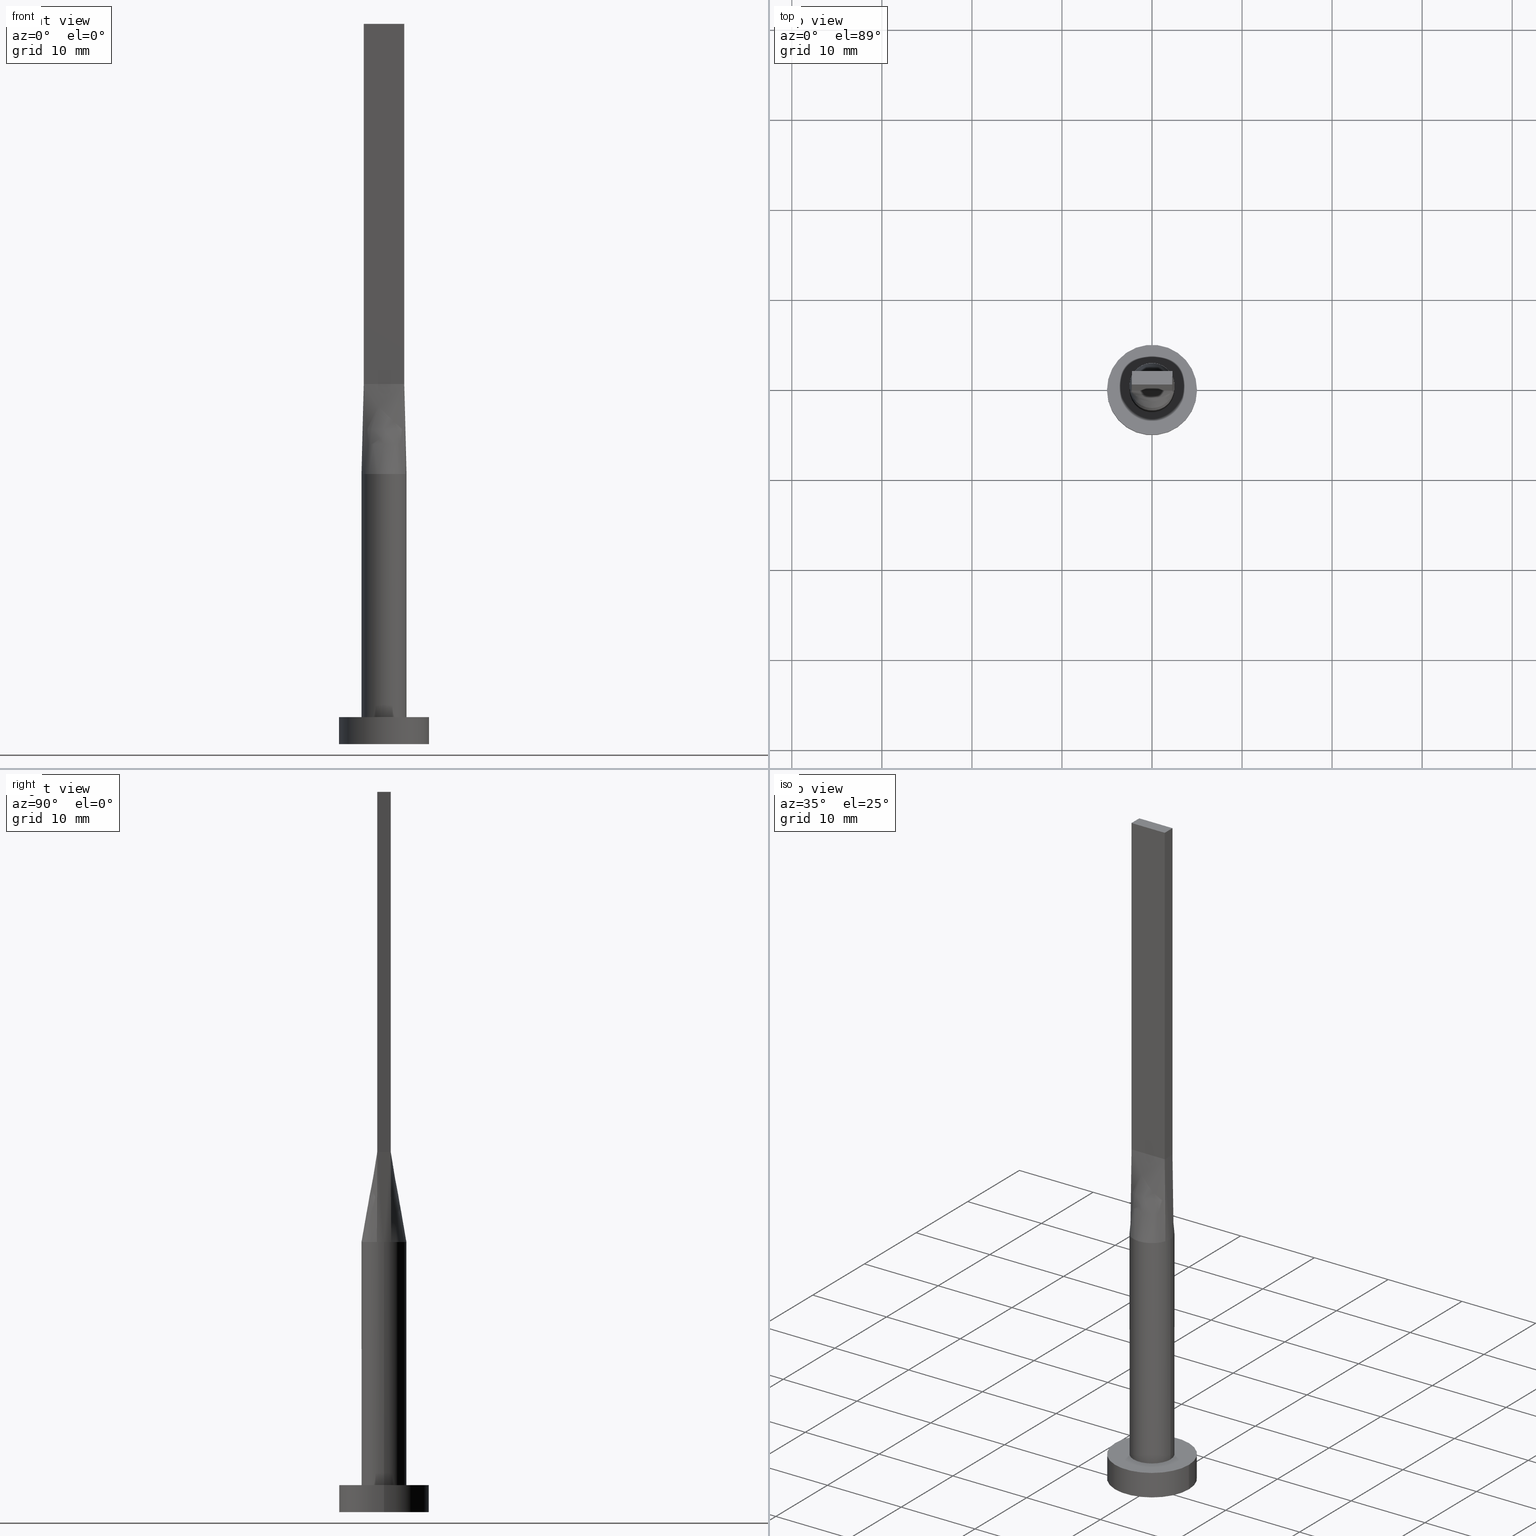
[diagram: canonical four-view strip — front | top / right | iso, engineering-drawing reading convention]
A machine part, canonical four-view strip (front | top / right | iso — engineering-drawing reading convention). The complete STEP part file that produces these views, byte-faithful:
ISO-10303-21;
HEADER;
FILE_DESCRIPTION (( 'STEP AP203' ),
    '1' );
FILE_NAME ('4ed2.STEP',
    '2023-02-13T11:21:04',
    ( '' ),
    ( '' ),
    'SwSTEP 2.0',
    'SolidWorks 2019',
    '' );
FILE_SCHEMA (( 'CONFIG_CONTROL_DESIGN' ));
ENDSEC;

DATA;
#1 = ORIENTED_EDGE ( 'NONE', *, *, #141, .F. ) ;
#2 = LINE ( 'NONE', #173, #305 ) ;
#3 = CARTESIAN_POINT ( 'NONE',  ( 2.371798206859841329, -0.7905998626979697796, 30.00000000000000000 ) ) ;
#4 = ORIENTED_EDGE ( 'NONE', *, *, #423, .T. ) ;
#5 = CARTESIAN_POINT ( 'NONE',  ( 0.000000000000000000, 0.000000000000000000, 3.000000000000000000 ) ) ;
#6 = DIRECTION ( 'NONE',  ( 1.000000000000000000, 0.000000000000000000, -0.000000000000000000 ) ) ;
#7 = CARTESIAN_POINT ( 'NONE',  ( -5.000000000000000000, 0.000000000000000000, 0.000000000000000000 ) ) ;
#8 = CARTESIAN_POINT ( 'NONE',  ( 5.000000000000000000, 6.123233995736766282E-16, 3.000000000000000000 ) ) ;
#9 = CARTESIAN_POINT ( 'NONE',  ( -2.249999999999999556, 0.7500000000000002220, 80.00000000000000000 ) ) ;
#10 = PLANE ( 'NONE',  #266 ) ;
#11 = COORDINATED_UNIVERSAL_TIME_OFFSET ( 1, 0, .AHEAD. ) ;
#12 = CARTESIAN_POINT ( 'NONE',  ( -2.309208245126284975, 0.9780694150420951027, 30.00000000000000355 ) ) ;
#13 = APPLICATION_PROTOCOL_DEFINITION ( 'international standard', 'config_control_design', 1994, #44 ) ;
#14 = CARTESIAN_POINT ( 'NONE',  ( -2.218933079238281536, 1.174882007251999871, 29.99999999999999645 ) ) ;
#15 = CC_DESIGN_PERSON_AND_ORGANIZATION_ASSIGNMENT ( #527, #195, ( #200 ) ) ;
#16 = CARTESIAN_POINT ( 'NONE',  ( 0.6000386972366476002, -2.444291348568452538, 30.00000000000000355 ) ) ;
#17 = B_SPLINE_SURFACE_WITH_KNOTS ( 'NONE', 3, 1, ( 
 ( #374, #522 ),
 ( #552, #197 ),
 ( #18, #478 ),
 ( #340, #72 ),
 ( #194, #380 ),
 ( #382, #116 ),
 ( #424, #560 ),
 ( #236, #149 ),
 ( #386, #513 ),
 ( #228, #152 ),
 ( #331, #290 ),
 ( #433, #274 ),
 ( #60, #471 ),
 ( #231, #225 ),
 ( #285, #334 ),
 ( #14, #518 ),
 ( #114, #481 ),
 ( #189, #324 ) ),
 .UNSPECIFIED., .F., .F., .F.,
 ( 4, 2, 2, 2, 2, 2, 2, 2, 4 ),
 ( 2, 2 ),
 ( 0.000000000000000000, 0.1250000000000000000, 0.2500000000000000000, 0.3750000000000000000, 0.5000000000000000000, 0.6250000000000000000, 0.7500000000000000000, 0.8750000000000000000, 1.000000000000000000 ),
 ( 0.000000000000000000, 1.000000000000000000 ),
 .UNSPECIFIED. ) ;
#18 = CARTESIAN_POINT ( 'NONE',  ( 2.218933079238281980, 1.174882007252000315, 29.99999999999999289 ) ) ;
#19 = CARTESIAN_POINT ( 'NONE',  ( 1.145194483530141083, -2.241235424885161365, 30.00000000000000000 ) ) ;
#20 = ORIENTED_EDGE ( 'NONE', *, *, #420, .F. ) ;
#21 = FACE_OUTER_BOUND ( 'NONE', #531, .T. ) ;
#22 = EDGE_CURVE ( 'NONE', #393, #564, #41, .T. ) ;
#23 = CARTESIAN_POINT ( 'NONE',  ( 2.371708245126284531, 0.7905694150420949917, 30.00000000000000000 ) ) ;
#24 = ORIENTED_EDGE ( 'NONE', *, *, #22, .T. ) ;
#25 = ORIENTED_EDGE ( 'NONE', *, *, #356, .F. ) ;
#26 = AXIS2_PLACEMENT_3D ( 'NONE', #175, #49, #135 ) ;
#27 = CARTESIAN_POINT ( 'NONE',  ( 0.000000000000000000, 0.000000000000000000, 30.00000000000000000 ) ) ;
#28 = EDGE_LOOP ( 'NONE', ( #456, #459 ) ) ;
#29 = CARTESIAN_POINT ( 'NONE',  ( -2.250000000000000000, -0.7499999999999995559, 80.00000000000000000 ) ) ;
#30 = EDGE_CURVE ( 'NONE', #567, #235, #47, .T. ) ;
#31 = DIRECTION ( 'NONE',  ( -0.000000000000000000, -0.000000000000000000, -1.000000000000000000 ) ) ;
#32 = CIRCLE ( 'NONE', #76, 5.000000000000000000 ) ;
#33 = VERTEX_POINT ( 'NONE', #131 ) ;
#34 = CARTESIAN_POINT ( 'NONE',  ( -2.500000000000000000, 0.000000000000000000, 3.000000000000000000 ) ) ;
#35 = CARTESIAN_POINT ( 'NONE',  ( 0.6000386972366480443, 2.444291348568451649, 29.99999999999999645 ) ) ;
#36 = VECTOR ( 'NONE', #346, 1000.000000000000000 ) ;
#37 = CARTESIAN_POINT ( 'NONE',  ( -2.250000000000000000, -0.7499999999999995559, 80.00000000000000000 ) ) ;
#38 = VECTOR ( 'NONE', #292, 1000.000000000000000 ) ;
#39 = CARTESIAN_POINT ( 'NONE',  ( -1.799471046981195199, 1.755719709239274229, 30.00000000000001066 ) ) ;
#40 = CARTESIAN_POINT ( 'NONE',  ( 1.390086206340438890, -2.094828891646495883, 30.00000000000000355 ) ) ;
#41 = LINE ( 'NONE', #540, #36 ) ;
#42 = ADVANCED_FACE ( 'NONE', ( #359 ), #492, .T. ) ;
#43 = ORIENTED_EDGE ( 'NONE', *, *, #158, .F. ) ;
#44 = APPLICATION_CONTEXT ( 'configuration controlled 3d designs of mechanical parts and assemblies' ) ;
#45 = LINE ( 'NONE', #352, #542 ) ;
#46 = ORIENTED_EDGE ( 'NONE', *, *, #260, .F. ) ;
#47 = LINE ( 'NONE', #410, #104 ) ;
#48 = EDGE_LOOP ( 'NONE', ( #196, #247, #120, #404, #20, #264 ) ) ;
#49 = DIRECTION ( 'NONE',  ( 0.000000000000000000, 0.000000000000000000, 1.000000000000000000 ) ) ;
#50 = UNCERTAINTY_MEASURE_WITH_UNIT (LENGTH_MEASURE( 1.000000000000000082E-05 ), #360, 'distance_accuracy_value', 'NONE');
#51 = EDGE_CURVE ( 'NONE', #97, #438, #396, .T. ) ;
#52 = DIRECTION ( 'NONE',  ( 0.000000000000000000, 0.000000000000000000, 1.000000000000000000 ) ) ;
#53 = B_SPLINE_SURFACE_WITH_KNOTS ( 'NONE', 3, 1, ( 
 ( #109, #428 ),
 ( #112, #155 ),
 ( #239, #192 ),
 ( #557, #67 ),
 ( #515, #283 ),
 ( #23, #186 ) ),
 .UNSPECIFIED., .F., .F., .F.,
 ( 4, 2, 4 ),
 ( 2, 2 ),
 ( 0.000000000000000000, 0.5000000000000000000, 1.000000000000000000 ),
 ( 0.000000000000000000, 1.000000000000000000 ),
 .UNSPECIFIED. ) ;
#54 = ORIENTED_EDGE ( 'NONE', *, *, #502, .F. ) ;
#55 = DIRECTION ( 'NONE',  ( 0.01216982305197525371, -0.004056607683991667393, 0.9999177162851859979 ) ) ;
#56 = SECURITY_CLASSIFICATION ( '', '', #336 ) ;
#57 = CARTESIAN_POINT ( 'NONE',  ( 2.249999999999999556, 0.7500000000000002220, 80.00000000000000000 ) ) ;
#58 = VECTOR ( 'NONE', #251, 1000.000000000000000 ) ;
#59 = CC_DESIGN_APPROVAL ( #119, ( #200 ) ) ;
#60 = CARTESIAN_POINT ( 'NONE',  ( -1.390086206340438890, 2.094828891646495883, 30.00000000000000355 ) ) ;
#61 = CALENDAR_DATE ( 2023, 13, 2 ) ;
#62 = CARTESIAN_POINT ( 'NONE',  ( -2.371775648085652222, -0.7905922034696525325, 30.00000000000000000 ) ) ;
#63 = EDGE_CURVE ( 'NONE', #205, #204, #534, .T. ) ;
#64 = CIRCLE ( 'NONE', #203, 2.500000000000000000 ) ;
#65 = CARTESIAN_POINT ( 'NONE',  ( -5.000000000000000000, 0.000000000000000000, 3.000000000000000000 ) ) ;
#66 = EDGE_LOOP ( 'NONE', ( #354, #411 ) ) ;
#67 = CARTESIAN_POINT ( 'NONE',  ( 2.249999999999999556, 0.2499999999999999445, 39.99999999999999289 ) ) ;
#68 = CARTESIAN_POINT ( 'NONE',  ( -2.218933079238281980, -1.174882007251999427, 29.99999999999999645 ) ) ;
#69 = EDGE_LOOP ( 'NONE', ( #277, #73, #77, #408, #575 ) ) ;
#70 = AXIS2_PLACEMENT_3D ( 'NONE', #272, #105, #457 ) ;
#71 = AXIS2_PLACEMENT_3D ( 'NONE', #27, #127, #258 ) ;
#72 = CARTESIAN_POINT ( 'NONE',  ( 1.499999999999991784, 0.7500000000000002220, 39.99999999999999289 ) ) ;
#73 = ORIENTED_EDGE ( 'NONE', *, *, #158, .T. ) ;
#74 = ORIENTED_EDGE ( 'NONE', *, *, #423, .F. ) ;
#75 = CARTESIAN_POINT ( 'NONE',  ( -5.000000000000000000, 0.000000000000000000, 3.000000000000000000 ) ) ;
#76 = AXIS2_PLACEMENT_3D ( 'NONE', #480, #559, #388 ) ;
#77 = ORIENTED_EDGE ( 'NONE', *, *, #30, .F. ) ;
#78 = CARTESIAN_POINT ( 'NONE',  ( -0.3003163416900532234, -2.499999999999999556, 30.00000000000000000 ) ) ;
#79 = ORIENTED_EDGE ( 'NONE', *, *, #555, .T. ) ;
#80 = CARTESIAN_POINT ( 'NONE',  ( -2.455041578459618012, -0.5405694150420945476, 30.00000000000000355 ) ) ;
#81 = CARTESIAN_POINT ( 'NONE',  ( 2.309208245126284975, 0.9780694150420948807, 29.99999999999999645 ) ) ;
#82 = EDGE_CURVE ( 'NONE', #165, #393, #84, .T. ) ;
#83 = CYLINDRICAL_SURFACE ( 'NONE', #537, 5.000000000000000000 ) ;
#84 = LINE ( 'NONE', #295, #58 ) ;
#85 = ORIENTED_EDGE ( 'NONE', *, *, #263, .T. ) ;
#86 = CARTESIAN_POINT ( 'NONE',  ( 2.250000000000000000, -0.7499999999999997780, 80.00000000000000000 ) ) ;
#87 = DIRECTION ( 'NONE',  ( -0.000000000000000000, -0.000000000000000000, -1.000000000000000000 ) ) ;
#88 = EDGE_CURVE ( 'NONE', #579, #183, #468, .T. ) ;
#89 = LINE ( 'NONE', #100, #154 ) ;
#90 = LOCAL_TIME ( 12, 21, 4.000000000000000000, #434 ) ;
#91 = EDGE_CURVE ( 'NONE', #230, #341, #113, .T. ) ;
#92 = CARTESIAN_POINT ( 'NONE',  ( 0.000000000000000000, 0.000000000000000000, 30.00000000000000000 ) ) ;
#93 = DIRECTION ( 'NONE',  ( 0.000000000000000000, 0.000000000000000000, 1.000000000000000000 ) ) ;
#94 = EDGE_LOOP ( 'NONE', ( #498, #581, #315, #4 ) ) ;
#95 = FACE_OUTER_BOUND ( 'NONE', #66, .T. ) ;
#96 = CARTESIAN_POINT ( 'NONE',  ( -2.250000000000000000, -0.7499999999999995559, 40.00000000000000000 ) ) ;
#97 = VERTEX_POINT ( 'NONE', #265 ) ;
#98 = CIRCLE ( 'NONE', #467, 2.500000000000000000 ) ;
#99 = DIRECTION ( 'NONE',  ( -1.000000000000000000, 0.000000000000000000, 0.000000000000000000 ) ) ;
#100 = CARTESIAN_POINT ( 'NONE',  ( -2.249999999999999556, 0.7500000000000002220, 40.00000000000000000 ) ) ;
#101 = FACE_BOUND ( 'NONE', #28, .T. ) ;
#102 = EDGE_LOOP ( 'NONE', ( #348, #54, #373, #148 ) ) ;
#103 = FACE_OUTER_BOUND ( 'NONE', #94, .T. ) ;
#104 = VECTOR ( 'NONE', #298, 1000.000000000000114 ) ;
#105 = DIRECTION ( 'NONE',  ( 1.000000000000000000, -2.891205793294678819E-16, 0.000000000000000000 ) ) ;
#106 = CC_DESIGN_PERSON_AND_ORGANIZATION_ASSIGNMENT ( #554, #232, ( #178 ) ) ;
#107 = CALENDAR_DATE ( 2023, 13, 2 ) ;
#108 = CARTESIAN_POINT ( 'NONE',  ( -1.145194483530141305, -2.241235424885160477, 30.00000000000000355 ) ) ;
#109 = CARTESIAN_POINT ( 'NONE',  ( 2.371708245126284531, -0.7905694150420953248, 30.00000000000000000 ) ) ;
#110 = AXIS2_PLACEMENT_3D ( 'NONE', #294, #245, #398 ) ;
#111 = ORIENTED_EDGE ( 'NONE', *, *, #545, .F. ) ;
#112 = CARTESIAN_POINT ( 'NONE',  ( 2.455041578459617568, -0.5405694150420953248, 30.00000000000000355 ) ) ;
#113 = CIRCLE ( 'NONE', #448, 5.000000000000000000 ) ;
#114 = CARTESIAN_POINT ( 'NONE',  ( -2.309208245126284975, 0.9780694150420951027, 30.00000000000000355 ) ) ;
#115 = EDGE_LOOP ( 'NONE', ( #111, #484, #160, #43, #556, #85 ) ) ;
#116 = CARTESIAN_POINT ( 'NONE',  ( 0.9374999999999881206, 0.7500000000000003331, 39.99999999999999289 ) ) ;
#117 = ORIENTED_EDGE ( 'NONE', *, *, #278, .F. ) ;
#118 = CARTESIAN_POINT ( 'NONE',  ( 2.250000000000000000, -0.7499999999999997780, 40.00000000000000000 ) ) ;
#119 = APPROVAL ( #182, 'NEUR�EN�' ) ;
#120 = ORIENTED_EDGE ( 'NONE', *, *, #220, .T. ) ;
#121 = FACE_OUTER_BOUND ( 'NONE', #271, .T. ) ;
#122 = CARTESIAN_POINT ( 'NONE',  ( 0.000000000000000000, 0.000000000000000000, 3.000000000000000000 ) ) ;
#123 = CARTESIAN_POINT ( 'NONE',  ( 1.799471046981194977, 1.755719709239274007, 30.00000000000000355 ) ) ;
#124 = DIRECTION ( 'NONE',  ( 1.000000000000000000, -4.818676322157797621E-17, 0.000000000000000000 ) ) ;
#125 = CARTESIAN_POINT ( 'NONE',  ( -2.455041578459617568, 0.5405694150420949917, 30.00000000000000355 ) ) ;
#126 = CARTESIAN_POINT ( 'NONE',  ( -0.3003163416900526128, 2.499999999999999112, 29.99999999999999645 ) ) ;
#127 = DIRECTION ( 'NONE',  ( 0.000000000000000000, 0.000000000000000000, 1.000000000000000000 ) ) ;
#128 = CARTESIAN_POINT ( 'NONE',  ( -2.250000000000000000, -0.7499999999999995559, 40.00000000000000000 ) ) ;
#129 = DIRECTION ( 'NONE',  ( -1.000000000000000000, 0.000000000000000000, 0.000000000000000000 ) ) ;
#130 = ORIENTED_EDGE ( 'NONE', *, *, #278, .T. ) ;
#131 = CARTESIAN_POINT ( 'NONE',  ( 2.500000000000000000, 3.061616997868383141E-16, 3.000000000000000000 ) ) ;
#132 = DIRECTION ( 'NONE',  ( -0.000000000000000000, -0.000000000000000000, -1.000000000000000000 ) ) ;
#133 = DIRECTION ( 'NONE',  ( 0.000000000000000000, 0.000000000000000000, 1.000000000000000000 ) ) ;
#134 = AXIS2_PLACEMENT_3D ( 'NONE', #461, #52, #217 ) ;
#135 = DIRECTION ( 'NONE',  ( 1.000000000000000000, 0.000000000000000000, 0.000000000000000000 ) ) ;
#136 = CARTESIAN_POINT ( 'NONE',  ( 0.000000000000000000, 0.000000000000000000, 0.000000000000000000 ) ) ;
#137 = DIRECTION ( 'NONE',  ( -0.01216982305197525371, -0.004056607683991722904, 0.9999177162851859979 ) ) ;
#138 = LINE ( 'NONE', #65, #227 ) ;
#139 = COORDINATED_UNIVERSAL_TIME_OFFSET ( 1, 0, .AHEAD. ) ;
#140 = EDGE_LOOP ( 'NONE', ( #46, #319, #533, #370 ) ) ;
#141 = EDGE_CURVE ( 'NONE', #487, #455, #418, .T. ) ;
#142 = DIRECTION ( 'NONE',  ( 0.000000000000000000, 0.000000000000000000, 1.000000000000000000 ) ) ;
#143 = VERTEX_POINT ( 'NONE', #313 ) ;
#144 = CARTESIAN_POINT ( 'NONE',  ( 2.249999999999999556, 0.7500000000000002220, 80.00000000000000000 ) ) ;
#145 = DATE_TIME_ROLE ( 'classification_date' ) ;
#146 = LINE ( 'NONE', #281, #406 ) ;
#147 = PERSON_AND_ORGANIZATION ( #163, #181 ) ;
#148 = ORIENTED_EDGE ( 'NONE', *, *, #63, .T. ) ;
#149 = CARTESIAN_POINT ( 'NONE',  ( 0.3749999999999862332, 0.7500000000000003331, 39.99999999999999289 ) ) ;
#150 = CARTESIAN_POINT ( 'NONE',  ( 2.499999999999999556, 3.110810548879990207E-17, 30.00000000000000000 ) ) ;
#151 = EDGE_LOOP ( 'NONE', ( #1, #453 ) ) ;
#152 = CARTESIAN_POINT ( 'NONE',  ( -0.1875000000000138778, 0.7500000000000003331, 39.99999999999999289 ) ) ;
#153 = PLANE ( 'NONE',  #314 ) ;
#154 = VECTOR ( 'NONE', #409, 1000.000000000000000 ) ;
#155 = CARTESIAN_POINT ( 'NONE',  ( 2.250000000000000000, -0.4999999999999998890, 39.99999999999999289 ) ) ;
#156 = MANIFOLD_SOLID_BREP ( 'P�idat vysunut�m5', #376 ) ;
#157 = DIRECTION ( 'NONE',  ( 1.000000000000000000, 0.000000000000000000, -0.000000000000000000 ) ) ;
#158 = EDGE_CURVE ( 'NONE', #97, #235, #98, .T. ) ;
#159 = LINE ( 'NONE', #525, #38 ) ;
#160 = ORIENTED_EDGE ( 'NONE', *, *, #555, .F. ) ;
#161 = VECTOR ( 'NONE', #226, 1000.000000000000000 ) ;
#162 = ADVANCED_FACE ( 'NONE', ( #101, #95 ), #269, .T. ) ;
#163 = PERSON ( 'NEUR�EN�', 'NEUR�EN�', 'NEUR�EN�', ('NEUR�EN�'), ('NEUR�EN�'), ('NEUR�EN�') ) ;
#164 = CARTESIAN_POINT ( 'NONE',  ( 1.799471046981195199, -1.755719709239274229, 30.00000000000000711 ) ) ;
#165 = VERTEX_POINT ( 'NONE', #9 ) ;
#166 = CARTESIAN_POINT ( 'NONE',  ( 2.250000000000000000, -0.7499999999999997780, 80.00000000000000000 ) ) ;
#167 = CARTESIAN_POINT ( 'NONE',  ( -1.390086206340438890, 2.094828891646495883, 30.00000000000000355 ) ) ;
#168 = LINE ( 'NONE', #501, #234 ) ;
#169 = DIRECTION ( 'NONE',  ( 0.000000000000000000, 0.000000000000000000, 1.000000000000000000 ) ) ;
#170 = CARTESIAN_POINT ( 'NONE',  ( 0.000000000000000000, 0.000000000000000000, 3.000000000000000000 ) ) ;
#171 = CARTESIAN_POINT ( 'NONE',  ( -2.500000000000000888, 0.2704627669472991491, 30.00000000000000000 ) ) ;
#172 = ORIENTED_EDGE ( 'NONE', *, *, #63, .F. ) ;
#173 = CARTESIAN_POINT ( 'NONE',  ( -2.249999999999999556, 0.7500000000000002220, 80.00000000000000000 ) ) ;
#174 = DIRECTION ( 'NONE',  ( -0.01216982305197521208, 0.004056607683991797497, 0.9999177162851859979 ) ) ;
#175 = CARTESIAN_POINT ( 'NONE',  ( 0.000000000000000000, 0.000000000000000000, 3.000000000000000000 ) ) ;
#176 = CC_DESIGN_DATE_AND_TIME_ASSIGNMENT ( #378, #286, ( #200 ) ) ;
#177 = DIRECTION ( 'NONE',  ( 4.818676322157797621E-17, 1.000000000000000000, -0.000000000000000000 ) ) ;
#178 = PRODUCT_DEFINITION_FORMATION_WITH_SPECIFIED_SOURCE ( 'LIBOVOLN�', '', #549, .NOT_KNOWN. ) ;
#179 = ADVANCED_FACE ( 'NONE', ( #470 ), #267, .F. ) ;
#180 = DIRECTION ( 'NONE',  ( 1.000000000000000000, 0.000000000000000000, 0.000000000000000000 ) ) ;
#181 = ORGANIZATION ( 'NEUR�EN�', 'NEUR�EN�', '' ) ;
#182 = APPROVAL_STATUS ( 'not_yet_approved' ) ;
#183 = VERTEX_POINT ( 'NONE', #184 ) ;
#184 = CARTESIAN_POINT ( 'NONE',  ( -2.371795432964766359, 0.7905989074952441964, 30.00000000000000000 ) ) ;
#185 = PRODUCT_DEFINITION_SHAPE ( 'NONE', 'NONE',  #200 ) ;
#186 = CARTESIAN_POINT ( 'NONE',  ( 2.249999999999999556, 0.7500000000000002220, 40.00000000000000000 ) ) ;
#187 = APPROVAL_ROLE ( '' ) ;
#188 = DIRECTION ( 'NONE',  ( 1.000000000000000000, 0.000000000000000000, 0.000000000000000000 ) ) ;
#189 = CARTESIAN_POINT ( 'NONE',  ( -2.371708245126284531, 0.7905694150420944366, 30.00000000000000000 ) ) ;
#190 = CARTESIAN_POINT ( 'NONE',  ( 2.250000000000000000, -0.7499999999999997780, 40.00000000000000000 ) ) ;
#191 = B_SPLINE_SURFACE_WITH_KNOTS ( 'NONE', 3, 1, ( 
 ( #379, #435 ),
 ( #486, #242 ),
 ( #68, #384 ),
 ( #476, #562 ),
 ( #287, #520 ),
 ( #483, #240 ),
 ( #108, #198 ),
 ( #201, #276 ),
 ( #78, #326 ),
 ( #472, #426 ),
 ( #16, #233 ),
 ( #19, #454 ),
 ( #40, #248 ),
 ( #164, #577 ),
 ( #536, #489 ),
 ( #355, #451 ),
 ( #571, #496 ),
 ( #209, #118 ) ),
 .UNSPECIFIED., .F., .F., .F.,
 ( 4, 2, 2, 2, 2, 2, 2, 2, 4 ),
 ( 2, 2 ),
 ( 0.000000000000000000, 0.1250000000000000555, 0.2500000000000001110, 0.3750000000000001110, 0.5000000000000001110, 0.6250000000000000000, 0.7500000000000000000, 0.8749999999999998890, 1.000000000000000000 ),
 ( 0.000000000000000000, 1.000000000000000000 ),
 .UNSPECIFIED. ) ;
#192 = CARTESIAN_POINT ( 'NONE',  ( 2.249999999999999556, -0.2500000000000000000, 39.99999999999999289 ) ) ;
#193 = PERSON_AND_ORGANIZATION ( #163, #181 ) ;
#194 = CARTESIAN_POINT ( 'NONE',  ( 1.799471046981194977, 1.755719709239274007, 30.00000000000000355 ) ) ;
#195 = PERSON_AND_ORGANIZATION_ROLE ( 'creator' ) ;
#196 = ORIENTED_EDGE ( 'NONE', *, *, #375, .F. ) ;
#197 = CARTESIAN_POINT ( 'NONE',  ( 2.062499999999996891, 0.7500000000000002220, 39.99999999999999289 ) ) ;
#198 = CARTESIAN_POINT ( 'NONE',  ( -0.7499999999999997780, -0.7499999999999995559, 40.00000000000000000 ) ) ;
#199 = AXIS2_PLACEMENT_3D ( 'NONE', #310, #93, #214 ) ;
#200 = PRODUCT_DEFINITION ( 'NEZN�M�', '', #178, #275 ) ;
#201 = CARTESIAN_POINT ( 'NONE',  ( -0.6000386972366480443, -2.444291348568451649, 29.99999999999998934 ) ) ;
#202 = DIRECTION ( 'NONE',  ( -0.000000000000000000, -0.000000000000000000, -1.000000000000000000 ) ) ;
#203 = AXIS2_PLACEMENT_3D ( 'NONE', #92, #402, #407 ) ;
#204 = VERTEX_POINT ( 'NONE', #421 ) ;
#205 = VERTEX_POINT ( 'NONE', #216 ) ;
#206 = CARTESIAN_POINT ( 'NONE',  ( -2.371708245126284531, 0.7905694150420949917, 30.00000000000000000 ) ) ;
#207 = CARTESIAN_POINT ( 'NONE',  ( -0.6000386972366482663, 2.444291348568452094, 30.00000000000000000 ) ) ;
#208 = CC_DESIGN_DATE_AND_TIME_ASSIGNMENT ( #383, #145, ( #56 ) ) ;
#209 = CARTESIAN_POINT ( 'NONE',  ( 2.371708245126284531, -0.7905694150420953248, 30.00000000000000000 ) ) ;
#210 = ORIENTED_EDGE ( 'NONE', *, *, #356, .T. ) ;
#211 = DIRECTION ( 'NONE',  ( -1.000000000000000000, -0.000000000000000000, -0.000000000000000000 ) ) ;
#212 = EDGE_LOOP ( 'NONE', ( #441, #74, #431, #576 ) ) ;
#213 = CIRCLE ( 'NONE', #110, 2.500000000000000000 ) ;
#214 = DIRECTION ( 'NONE',  ( 1.000000000000000000, -4.440892098500626162E-15, 0.000000000000000000 ) ) ;
#215 = ADVANCED_FACE ( 'NONE', ( #103 ), #362, .F. ) ;
#216 = CARTESIAN_POINT ( 'NONE',  ( 2.249999999999999556, 0.7500000000000002220, 80.00000000000000000 ) ) ;
#217 = DIRECTION ( 'NONE',  ( 1.000000000000000000, 0.000000000000000000, 0.000000000000000000 ) ) ;
#218 = B_SPLINE_SURFACE_WITH_KNOTS ( 'NONE', 3, 1, ( 
 ( #206, #535 ),
 ( #125, #308 ),
 ( #171, #569 ),
 ( #257, #301 ),
 ( #80, #342 ),
 ( #526, #574 ) ),
 .UNSPECIFIED., .F., .F., .F.,
 ( 4, 2, 4 ),
 ( 2, 2 ),
 ( 0.000000000000000000, 0.5000000000000000000, 1.000000000000000000 ),
 ( 0.000000000000000000, 1.000000000000000000 ),
 .UNSPECIFIED. ) ;
#219 = DIRECTION ( 'NONE',  ( 0.000000000000000000, 0.000000000000000000, 1.000000000000000000 ) ) ;
#220 = EDGE_CURVE ( 'NONE', #33, #438, #439, .T. ) ;
#221 = CC_DESIGN_APPROVAL ( #442, ( #178 ) ) ;
#222 = DIRECTION ( 'NONE',  ( 1.000000000000000000, 0.000000000000000000, 0.000000000000000000 ) ) ;
#223 = AXIS2_PLACEMENT_3D ( 'NONE', #303, #390, #568 ) ;
#224 = ORIENTED_EDGE ( 'NONE', *, *, #375, .T. ) ;
#225 = CARTESIAN_POINT ( 'NONE',  ( -1.312500000000008882, 0.7500000000000002220, 39.99999999999999289 ) ) ;
#226 = DIRECTION ( 'NONE',  ( -0.000000000000000000, -0.000000000000000000, -1.000000000000000000 ) ) ;
#227 = VECTOR ( 'NONE', #523, 1000.000000000000000 ) ;
#228 = CARTESIAN_POINT ( 'NONE',  ( -0.3003163416900526128, 2.499999999999999112, 29.99999999999999645 ) ) ;
#229 = CARTESIAN_POINT ( 'NONE',  ( 2.250000000000000000, -0.7499999999999997780, 80.00000000000000000 ) ) ;
#230 = VERTEX_POINT ( 'NONE', #508 ) ;
#231 = CARTESIAN_POINT ( 'NONE',  ( -1.799471046981195199, 1.755719709239274229, 30.00000000000001066 ) ) ;
#232 = PERSON_AND_ORGANIZATION_ROLE ( 'creator' ) ;
#233 = CARTESIAN_POINT ( 'NONE',  ( 0.3749999999999996669, -0.7499999999999995559, 39.99999999999999289 ) ) ;
#234 = VECTOR ( 'NONE', #174, 1000.000000000000114 ) ;
#235 = VERTEX_POINT ( 'NONE', #62 ) ;
#236 = CARTESIAN_POINT ( 'NONE',  ( 0.6000386972366480443, 2.444291348568451649, 29.99999999999999645 ) ) ;
#237 = CALENDAR_DATE ( 2023, 13, 2 ) ;
#238 = DIRECTION ( 'NONE',  ( -2.891205793294678326E-16, 1.000000000000000000, -0.000000000000000000 ) ) ;
#239 = CARTESIAN_POINT ( 'NONE',  ( 2.499999999999999556, -0.2704627669472993157, 30.00000000000000000 ) ) ;
#240 = CARTESIAN_POINT ( 'NONE',  ( -0.9374999999999997780, -0.7499999999999995559, 40.00000000000000000 ) ) ;
#241 = EDGE_CURVE ( 'NONE', #205, #165, #371, .T. ) ;
#242 = CARTESIAN_POINT ( 'NONE',  ( -2.062499999999999556, -0.7499999999999995559, 40.00000000000000000 ) ) ;
#243 = ORIENTED_EDGE ( 'NONE', *, *, #538, .F. ) ;
#244 = DIRECTION ( 'NONE',  ( 1.000000000000000000, 0.000000000000000000, -0.000000000000000000 ) ) ;
#245 = DIRECTION ( 'NONE',  ( 0.000000000000000000, 0.000000000000000000, 1.000000000000000000 ) ) ;
#246 = CARTESIAN_POINT ( 'NONE',  ( 1.964343640889990361, 1.563766543189047287, 29.99999999999998934 ) ) ;
#247 = ORIENTED_EDGE ( 'NONE', *, *, #545, .T. ) ;
#248 = CARTESIAN_POINT ( 'NONE',  ( 0.9374999999999998890, -0.7499999999999996669, 39.99999999999999289 ) ) ;
#249 = ADVANCED_FACE ( 'NONE', ( #504 ), #273, .T. ) ;
#250 = AXIS2_PLACEMENT_3D ( 'NONE', #170, #296, #129 ) ;
#251 = DIRECTION ( 'NONE',  ( -2.891205793294678819E-16, -1.000000000000000000, 0.000000000000000000 ) ) ;
#252 = ORIENTED_EDGE ( 'NONE', *, *, #297, .F. ) ;
#253 = DIRECTION ( 'NONE',  ( -0.000000000000000000, -0.000000000000000000, -1.000000000000000000 ) ) ;
#254 = CARTESIAN_POINT ( 'NONE',  ( 2.218933079238281980, 1.174882007252000315, 29.99999999999999289 ) ) ;
#255 = LOCAL_TIME ( 12, 21, 4.000000000000000000, #519 ) ;
#256 = LOCAL_TIME ( 12, 21, 4.000000000000000000, #139 ) ;
#257 = CARTESIAN_POINT ( 'NONE',  ( -2.500000000000000888, -0.2704627669472985385, 30.00000000000000000 ) ) ;
#258 = DIRECTION ( 'NONE',  ( 1.000000000000000000, 0.000000000000000000, 0.000000000000000000 ) ) ;
#259 = ORIENTED_EDGE ( 'NONE', *, *, #573, .F. ) ;
#260 = EDGE_CURVE ( 'NONE', #230, #455, #416, .T. ) ;
#261 = EDGE_LOOP ( 'NONE', ( #422, #339, #397, #252 ) ) ;
#262 = CARTESIAN_POINT ( 'NONE',  ( -1.964343640889990805, 1.563766543189048175, 30.00000000000000000 ) ) ;
#263 = EDGE_CURVE ( 'NONE', #438, #33, #289, .T. ) ;
#264 = ORIENTED_EDGE ( 'NONE', *, *, #88, .F. ) ;
#265 = CARTESIAN_POINT ( 'NONE',  ( -2.500000000000000444, -1.570839010700814298E-16, 30.00000000000000000 ) ) ;
#266 = AXIS2_PLACEMENT_3D ( 'NONE', #144, #511, #377 ) ;
#267 = PLANE ( 'NONE',  #70 ) ;
#268 = MECHANICAL_CONTEXT ( 'NONE', #44, 'mechanical' ) ;
#269 = PLANE ( 'NONE',  #427 ) ;
#270 = PERSON_AND_ORGANIZATION ( #163, #181 ) ;
#271 = EDGE_LOOP ( 'NONE', ( #210, #172, #570, #521 ) ) ;
#272 = CARTESIAN_POINT ( 'NONE',  ( -2.249999999999999556, 0.7500000000000002220, 80.00000000000000000 ) ) ;
#273 = CYLINDRICAL_SURFACE ( 'NONE', #392, 2.500000000000000000 ) ;
#274 = CARTESIAN_POINT ( 'NONE',  ( -0.7500000000000122125, 0.7500000000000002220, 39.99999999999999289 ) ) ;
#275 = DESIGN_CONTEXT ( 'detailed design', #343, 'design' ) ;
#276 = CARTESIAN_POINT ( 'NONE',  ( -0.3749999999999999445, -0.7499999999999995559, 40.00000000000000000 ) ) ;
#277 = ORIENTED_EDGE ( 'NONE', *, *, #420, .T. ) ;
#278 = EDGE_CURVE ( 'NONE', #579, #204, #414, .T. ) ;
#279 = FACE_OUTER_BOUND ( 'NONE', #102, .T. ) ;
#280 = APPROVAL_STATUS ( 'not_yet_approved' ) ;
#281 = CARTESIAN_POINT ( 'NONE',  ( 2.249999999999999556, 0.7500000000000002220, 40.00000000000000000 ) ) ;
#282 = APPROVAL_DATE_TIME ( #509, #119 ) ;
#283 = CARTESIAN_POINT ( 'NONE',  ( 2.249999999999999556, 0.5000000000000000000, 39.99999999999999289 ) ) ;
#284 = DATE_AND_TIME ( #107, #255 ) ;
#285 = CARTESIAN_POINT ( 'NONE',  ( -1.964343640889990805, 1.563766543189048175, 30.00000000000000000 ) ) ;
#286 = DATE_TIME_ROLE ( 'creation_date' ) ;
#287 = CARTESIAN_POINT ( 'NONE',  ( -1.799471046981195421, -1.755719709239273785, 30.00000000000000355 ) ) ;
#288 = EDGE_CURVE ( 'NONE', #183, #143, #546, .T. ) ;
#289 = CIRCLE ( 'NONE', #134, 2.500000000000000000 ) ;
#290 = CARTESIAN_POINT ( 'NONE',  ( -0.3750000000000135447, 0.7500000000000003331, 39.99999999999999289 ) ) ;
#291 = DIRECTION ( 'NONE',  ( -2.891205793294678326E-16, 1.000000000000000000, 0.000000000000000000 ) ) ;
#292 = DIRECTION ( 'NONE',  ( -0.000000000000000000, -0.000000000000000000, -1.000000000000000000 ) ) ;
#293 = ORIENTED_EDGE ( 'NONE', *, *, #565, .T. ) ;
#294 = CARTESIAN_POINT ( 'NONE',  ( 0.000000000000000000, 0.000000000000000000, 30.00000000000000000 ) ) ;
#295 = CARTESIAN_POINT ( 'NONE',  ( -2.249999999999999556, 0.7500000000000002220, 80.00000000000000000 ) ) ;
#296 = DIRECTION ( 'NONE',  ( -0.000000000000000000, -0.000000000000000000, -1.000000000000000000 ) ) ;
#297 = EDGE_CURVE ( 'NONE', #341, #487, #138, .T. ) ;
#298 = DIRECTION ( 'NONE',  ( -0.01216982305197525371, -0.004056607683991732445, -0.9999177162851859979 ) ) ;
#299 = CARTESIAN_POINT ( 'NONE',  ( 2.250000000000000000, -0.7499999999999997780, 80.00000000000000000 ) ) ;
#300 = VERTEX_POINT ( 'NONE', #190 ) ;
#301 = CARTESIAN_POINT ( 'NONE',  ( -2.249999999999999556, -0.2499999999999995282, 39.99999999999999289 ) ) ;
#302 =( NAMED_UNIT ( * ) SI_UNIT ( $, .STERADIAN. ) SOLID_ANGLE_UNIT ( ) );
#303 = CARTESIAN_POINT ( 'NONE',  ( 0.000000000000000000, 0.000000000000000000, 0.000000000000000000 ) ) ;
#304 = LINE ( 'NONE', #166, #450 ) ;
#305 = VECTOR ( 'NONE', #132, 1000.000000000000000 ) ;
#306 = AXIS2_PLACEMENT_3D ( 'NONE', #488, #31, #490 ) ;
#307 = EDGE_CURVE ( 'NONE', #341, #230, #32, .T. ) ;
#308 = CARTESIAN_POINT ( 'NONE',  ( -2.249999999999999556, 0.5000000000000002220, 39.99999999999999289 ) ) ;
#309 = CARTESIAN_POINT ( 'NONE',  ( -2.500000000000000000, 0.000000000000000000, 30.00000000000000000 ) ) ;
#310 = CARTESIAN_POINT ( 'NONE',  ( 0.000000000000000000, 0.000000000000000000, 30.00000000000000000 ) ) ;
#311 = ADVANCED_FACE ( 'NONE', ( #566 ), #153, .F. ) ;
#312 = ORIENTED_EDGE ( 'NONE', *, *, #573, .T. ) ;
#313 = CARTESIAN_POINT ( 'NONE',  ( -2.249999999999999556, 0.7500000000000002220, 40.00000000000000000 ) ) ;
#314 = AXIS2_PLACEMENT_3D ( 'NONE', #333, #338, #157 ) ;
#315 = ORIENTED_EDGE ( 'NONE', *, *, #22, .F. ) ;
#316 = DIRECTION ( 'NONE',  ( -1.000000000000000000, 0.000000000000000000, 0.000000000000000000 ) ) ;
#317 = EDGE_CURVE ( 'NONE', #564, #205, #517, .T. ) ;
#318 = CARTESIAN_POINT ( 'NONE',  ( -2.218933079238281536, 1.174882007251999871, 29.99999999999999645 ) ) ;
#319 = ORIENTED_EDGE ( 'NONE', *, *, #307, .F. ) ;
#320 = CARTESIAN_POINT ( 'NONE',  ( 0.000000000000000000, 0.000000000000000000, 3.000000000000000000 ) ) ;
#321 = CALENDAR_DATE ( 2023, 13, 2 ) ;
#322 = VECTOR ( 'NONE', #55, 1000.000000000000114 ) ;
#323 = EDGE_LOOP ( 'NONE', ( #293, #224, #130, #25, #259 ) ) ;
#324 = CARTESIAN_POINT ( 'NONE',  ( -2.249999999999999556, 0.7500000000000002220, 40.00000000000000000 ) ) ;
#325 = APPROVAL_STATUS ( 'not_yet_approved' ) ;
#326 = CARTESIAN_POINT ( 'NONE',  ( -0.1875000000000000833, -0.7499999999999995559, 40.00000000000000000 ) ) ;
#327 = APPROVAL ( #325, 'NEUR�EN�' ) ;
#328 = VERTEX_POINT ( 'NONE', #150 ) ;
#329 = PLANE ( 'NONE',  #544 ) ;
#330 = APPROVAL_ROLE ( '' ) ;
#331 = CARTESIAN_POINT ( 'NONE',  ( -0.6000386972366482663, 2.444291348568452094, 30.00000000000000000 ) ) ;
#332 = COORDINATED_UNIVERSAL_TIME_OFFSET ( 1, 0, .AHEAD. ) ;
#333 = CARTESIAN_POINT ( 'NONE',  ( 0.000000000000000000, 0.000000000000000000, 0.000000000000000000 ) ) ;
#334 = CARTESIAN_POINT ( 'NONE',  ( -1.500000000000007327, 0.7500000000000002220, 39.99999999999999289 ) ) ;
#335 = AXIS2_PLACEMENT_3D ( 'NONE', #86, #491, #447 ) ;
#336 = SECURITY_CLASSIFICATION_LEVEL ( 'unclassified' ) ;
#337 = CC_DESIGN_PERSON_AND_ORGANIZATION_ASSIGNMENT ( #425, #558, ( #178 ) ) ;
#338 = DIRECTION ( 'NONE',  ( 0.000000000000000000, 0.000000000000000000, 1.000000000000000000 ) ) ;
#339 = ORIENTED_EDGE ( 'NONE', *, *, #260, .T. ) ;
#340 = CARTESIAN_POINT ( 'NONE',  ( 1.964343640889990361, 1.563766543189047287, 29.99999999999998934 ) ) ;
#341 = VERTEX_POINT ( 'NONE', #75 ) ;
#342 = CARTESIAN_POINT ( 'NONE',  ( -2.250000000000000000, -0.4999999999999995559, 39.99999999999999289 ) ) ;
#343 = APPLICATION_CONTEXT ( 'configuration controlled 3d designs of mechanical parts and assemblies' ) ;
#344 = CYLINDRICAL_SURFACE ( 'NONE', #250, 5.000000000000000000 ) ;
#345 = VECTOR ( 'NONE', #87, 1000.000000000000000 ) ;
#346 = DIRECTION ( 'NONE',  ( 1.000000000000000000, -4.818676322157797621E-17, 0.000000000000000000 ) ) ;
#347 =( NAMED_UNIT ( * ) PLANE_ANGLE_UNIT ( ) SI_UNIT ( $, .RADIAN. ) );
#348 = ORIENTED_EDGE ( 'NONE', *, *, #381, .T. ) ;
#349 = CARTESIAN_POINT ( 'NONE',  ( 5.000000000000000000, 6.123233995736766282E-16, 0.000000000000000000 ) ) ;
#350 = CARTESIAN_POINT ( 'NONE',  ( 1.390086206340439112, 2.094828891646494995, 30.00000000000000355 ) ) ;
#351 = CARTESIAN_POINT ( 'NONE',  ( 2.371772892450305648, 0.7905912578404317159, 30.00000000000000000 ) ) ;
#352 = CARTESIAN_POINT ( 'NONE',  ( -2.249999999999999556, 0.7500000000000002220, 40.00000000000000000 ) ) ;
#353 = DIRECTION ( 'NONE',  ( -0.000000000000000000, -0.000000000000000000, -1.000000000000000000 ) ) ;
#354 = ORIENTED_EDGE ( 'NONE', *, *, #307, .T. ) ;
#355 = CARTESIAN_POINT ( 'NONE',  ( 2.218933079238280204, -1.174882007251999871, 29.99999999999998934 ) ) ;
#356 = EDGE_CURVE ( 'NONE', #300, #204, #146, .T. ) ;
#357 = CARTESIAN_POINT ( 'NONE',  ( 1.145194483530141749, 2.241235424885160921, 30.00000000000000355 ) ) ;
#358 = VECTOR ( 'NONE', #316, 1000.000000000000000 ) ;
#359 = FACE_OUTER_BOUND ( 'NONE', #115, .T. ) ;
#360 =( LENGTH_UNIT ( ) NAMED_UNIT ( * ) SI_UNIT ( .MILLI., .METRE. ) );
#361 = ORIENTED_EDGE ( 'NONE', *, *, #288, .T. ) ;
#362 = PLANE ( 'NONE',  #399 ) ;
#363 = CARTESIAN_POINT ( 'NONE',  ( 2.310854122563142266, 0.7702847075210476069, 35.00000000000000000 ) ) ;
#364 = LOCAL_TIME ( 12, 21, 4.000000000000000000, #11 ) ;
#365 = VECTOR ( 'NONE', #353, 1000.000000000000000 ) ;
#366 = APPROVAL_PERSON_ORGANIZATION ( #147, #442, #330 ) ;
#367 = DIRECTION ( 'NONE',  ( -1.000000000000000000, 4.818676322157797621E-17, 0.000000000000000000 ) ) ;
#368 = APPROVAL_ROLE ( '' ) ;
#369 = ORIENTED_EDGE ( 'NONE', *, *, #88, .T. ) ;
#370 = ORIENTED_EDGE ( 'NONE', *, *, #141, .T. ) ;
#371 = LINE ( 'NONE', #57, #358 ) ;
#372 = ADVANCED_FACE ( 'NONE', ( #437 ), #191, .T. ) ;
#373 = ORIENTED_EDGE ( 'NONE', *, *, #241, .F. ) ;
#374 = CARTESIAN_POINT ( 'NONE',  ( 2.371708245126284531, 0.7905694150420949917, 30.00000000000000000 ) ) ;
#375 = EDGE_CURVE ( 'NONE', #328, #579, #64, .T. ) ;
#376 = CLOSED_SHELL ( 'NONE', ( #249, #460, #403, #162, #311, #42, #372, #514, #412, #524, #529, #179, #215, #466, #532 ) ) ;
#377 = DIRECTION ( 'NONE',  ( 0.000000000000000000, -0.000000000000000000, -1.000000000000000000 ) ) ;
#378 = DATE_AND_TIME ( #61, #364 ) ;
#379 = CARTESIAN_POINT ( 'NONE',  ( -2.371708245126284975, -0.7905694150420944366, 30.00000000000000000 ) ) ;
#380 = CARTESIAN_POINT ( 'NONE',  ( 1.312499999999990230, 0.7500000000000002220, 39.99999999999999289 ) ) ;
#381 = EDGE_CURVE ( 'NONE', #204, #143, #45, .T. ) ;
#382 = CARTESIAN_POINT ( 'NONE',  ( 1.390086206340439112, 2.094828891646494995, 30.00000000000000355 ) ) ;
#383 = DATE_AND_TIME ( #237, #90 ) ;
#384 = CARTESIAN_POINT ( 'NONE',  ( -1.874999999999999556, -0.7499999999999995559, 40.00000000000000000 ) ) ;
#385 = ORIENTED_EDGE ( 'NONE', *, *, #82, .T. ) ;
#386 = CARTESIAN_POINT ( 'NONE',  ( 0.3003163416900527238, 2.499999999999999556, 30.00000000000000355 ) ) ;
#387 = AXIS2_PLACEMENT_3D ( 'NONE', #510, #133, #222 ) ;
#388 = DIRECTION ( 'NONE',  ( 1.000000000000000000, 0.000000000000000000, 0.000000000000000000 ) ) ;
#389 = VECTOR ( 'NONE', #124, 1000.000000000000000 ) ;
#390 = DIRECTION ( 'NONE',  ( 0.000000000000000000, 0.000000000000000000, 1.000000000000000000 ) ) ;
#391 = FACE_OUTER_BOUND ( 'NONE', #140, .T. ) ;
#392 = AXIS2_PLACEMENT_3D ( 'NONE', #465, #551, #99 ) ;
#393 = VERTEX_POINT ( 'NONE', #37 ) ;
#394 = FACE_OUTER_BOUND ( 'NONE', #261, .T. ) ;
#395 = CC_DESIGN_PERSON_AND_ORGANIZATION_ASSIGNMENT ( #193, #512, ( #56 ) ) ;
#396 = LINE ( 'NONE', #309, #345 ) ;
#397 = ORIENTED_EDGE ( 'NONE', *, *, #541, .T. ) ;
#398 = DIRECTION ( 'NONE',  ( 1.000000000000000000, 0.000000000000000000, 0.000000000000000000 ) ) ;
#399 = AXIS2_PLACEMENT_3D ( 'NONE', #543, #177, #367 ) ;
#400 = CARTESIAN_POINT ( 'NONE',  ( -1.145194483530141527, 2.241235424885160921, 29.99999999999999645 ) ) ;
#401 = LOCAL_TIME ( 12, 21, 4.000000000000000000, #332 ) ;
#402 = DIRECTION ( 'NONE',  ( 0.000000000000000000, 0.000000000000000000, 1.000000000000000000 ) ) ;
#403 = ADVANCED_FACE ( 'NONE', ( #391 ), #344, .T. ) ;
#404 = ORIENTED_EDGE ( 'NONE', *, *, #51, .F. ) ;
#405 = PRODUCT_RELATED_PRODUCT_CATEGORY ( 'detail', '', ( #549 ) ) ;
#406 = VECTOR ( 'NONE', #238, 1000.000000000000000 ) ;
#407 = DIRECTION ( 'NONE',  ( 1.000000000000000000, 0.000000000000000000, 0.000000000000000000 ) ) ;
#408 = ORIENTED_EDGE ( 'NONE', *, *, #485, .F. ) ;
#409 = DIRECTION ( 'NONE',  ( -2.891205793294678819E-16, -1.000000000000000000, 0.000000000000000000 ) ) ;
#410 = CARTESIAN_POINT ( 'NONE',  ( -2.310854122563142266, -0.7702847075210469407, 35.00000000000000000 ) ) ;
#411 = ORIENTED_EDGE ( 'NONE', *, *, #91, .T. ) ;
#412 = ADVANCED_FACE ( 'NONE', ( #580 ), #218, .T. ) ;
#413 = CARTESIAN_POINT ( 'NONE',  ( -2.371795432964766359, 0.7905989074952441964, 30.00000000000000000 ) ) ;
#414 = LINE ( 'NONE', #363, #550 ) ;
#415 = DIRECTION ( 'NONE',  ( 1.000000000000000000, 0.000000000000000000, 0.000000000000000000 ) ) ;
#416 = LINE ( 'NONE', #8, #161 ) ;
#417 = CIRCLE ( 'NONE', #71, 2.500000000000000000 ) ;
#418 = CIRCLE ( 'NONE', #387, 5.000000000000000000 ) ;
#419 = CIRCLE ( 'NONE', #223, 5.000000000000000000 ) ;
#420 = EDGE_CURVE ( 'NONE', #183, #97, #213, .T. ) ;
#421 = CARTESIAN_POINT ( 'NONE',  ( 2.249999999999999556, 0.7500000000000002220, 40.00000000000000000 ) ) ;
#422 = ORIENTED_EDGE ( 'NONE', *, *, #91, .F. ) ;
#423 = EDGE_CURVE ( 'NONE', #393, #567, #443, .T. ) ;
#424 = CARTESIAN_POINT ( 'NONE',  ( 1.145194483530141749, 2.241235424885160921, 30.00000000000000355 ) ) ;
#425 = PERSON_AND_ORGANIZATION ( #163, #181 ) ;
#426 = CARTESIAN_POINT ( 'NONE',  ( 0.1874999999999997224, -0.7499999999999995559, 39.99999999999999289 ) ) ;
#427 = AXIS2_PLACEMENT_3D ( 'NONE', #320, #142, #6 ) ;
#428 = CARTESIAN_POINT ( 'NONE',  ( 2.250000000000000000, -0.7499999999999997780, 40.00000000000000000 ) ) ;
#429 = APPROVAL_PERSON_ORGANIZATION ( #516, #327, #187 ) ;
#430 = EDGE_CURVE ( 'NONE', #564, #300, #304, .T. ) ;
#431 = ORIENTED_EDGE ( 'NONE', *, *, #82, .F. ) ;
#432 = ORIENTED_EDGE ( 'NONE', *, *, #317, .T. ) ;
#433 = CARTESIAN_POINT ( 'NONE',  ( -1.145194483530141527, 2.241235424885160921, 29.99999999999999645 ) ) ;
#434 = COORDINATED_UNIVERSAL_TIME_OFFSET ( 1, 0, .AHEAD. ) ;
#435 = CARTESIAN_POINT ( 'NONE',  ( -2.250000000000000000, -0.7499999999999995559, 40.00000000000000000 ) ) ;
#436 = EDGE_LOOP ( 'NONE', ( #548, #385, #24, #432 ) ) ;
#437 = FACE_OUTER_BOUND ( 'NONE', #477, .T. ) ;
#438 = VERTEX_POINT ( 'NONE', #34 ) ;
#439 = CIRCLE ( 'NONE', #26, 2.500000000000000000 ) ;
#440 = VECTOR ( 'NONE', #253, 1000.000000000000000 ) ;
#441 = ORIENTED_EDGE ( 'NONE', *, *, #485, .T. ) ;
#442 = APPROVAL ( #280, 'NEUR�EN�' ) ;
#443 = LINE ( 'NONE', #29, #440 ) ;
#444 = PLANE ( 'NONE',  #335 ) ;
#445 = LINE ( 'NONE', #128, #389 ) ;
#446 =( GEOMETRIC_REPRESENTATION_CONTEXT ( 3 ) GLOBAL_UNCERTAINTY_ASSIGNED_CONTEXT ( ( #50 ) ) GLOBAL_UNIT_ASSIGNED_CONTEXT ( ( #360, #347, #302 ) ) REPRESENTATION_CONTEXT ( 'NONE', 'WORKASPACE' ) );
#447 = DIRECTION ( 'NONE',  ( 2.891205793294678326E-16, -1.000000000000000000, 0.000000000000000000 ) ) ;
#448 = AXIS2_PLACEMENT_3D ( 'NONE', #5, #506, #188 ) ;
#449 = CC_DESIGN_PERSON_AND_ORGANIZATION_ASSIGNMENT ( #270, #462, ( #549 ) ) ;
#450 = VECTOR ( 'NONE', #202, 1000.000000000000000 ) ;
#451 = CARTESIAN_POINT ( 'NONE',  ( 1.874999999999999556, -0.7499999999999997780, 39.99999999999999289 ) ) ;
#452 = CARTESIAN_POINT ( 'NONE',  ( 0.3003163416900527238, 2.499999999999999556, 30.00000000000000355 ) ) ;
#453 = ORIENTED_EDGE ( 'NONE', *, *, #541, .F. ) ;
#454 = CARTESIAN_POINT ( 'NONE',  ( 0.7499999999999996669, -0.7499999999999995559, 39.99999999999999289 ) ) ;
#455 = VERTEX_POINT ( 'NONE', #349 ) ;
#456 = ORIENTED_EDGE ( 'NONE', *, *, #263, .F. ) ;
#457 = DIRECTION ( 'NONE',  ( 2.891205793294678819E-16, 1.000000000000000000, 0.000000000000000000 ) ) ;
#458 = CC_DESIGN_SECURITY_CLASSIFICATION ( #56, ( #178 ) ) ;
#459 = ORIENTED_EDGE ( 'NONE', *, *, #220, .F. ) ;
#460 = ADVANCED_FACE ( 'NONE', ( #394 ), #83, .T. ) ;
#461 = CARTESIAN_POINT ( 'NONE',  ( 0.000000000000000000, 0.000000000000000000, 3.000000000000000000 ) ) ;
#462 = PERSON_AND_ORGANIZATION_ROLE ( 'design_owner' ) ;
#463 = CARTESIAN_POINT ( 'NONE',  ( -2.310854122563142266, 0.7702847075210473848, 35.00000000000000000 ) ) ;
#464 = APPLICATION_PROTOCOL_DEFINITION ( 'international standard', 'config_control_design', 1994, #343 ) ;
#465 = CARTESIAN_POINT ( 'NONE',  ( 0.000000000000000000, 0.000000000000000000, 30.00000000000000000 ) ) ;
#466 = ADVANCED_FACE ( 'NONE', ( #121 ), #444, .F. ) ;
#467 = AXIS2_PLACEMENT_3D ( 'NONE', #500, #219, #180 ) ;
#468 = B_SPLINE_CURVE_WITH_KNOTS ( 'NONE', 3,
 ( #497, #81, #254, #246, #123, #350, #357, #35, #452, #126, #207, #400, #167, #39, #262, #318, #12, #413 ),
 .UNSPECIFIED., .F., .F.,
 ( 4, 2, 2, 2, 2, 2, 2, 2, 4 ),
 ( 0.000000000000000000, 0.1250000000000000000, 0.2500000000000000000, 0.3750000000000000000, 0.5000000000000000000, 0.6250000000000000000, 0.7500000000000000000, 0.8750000000000000000, 1.000000000000000000 ),
 .UNSPECIFIED. ) ;
#469 = APPROVAL_DATE_TIME ( #475, #442 ) ;
#470 = FACE_OUTER_BOUND ( 'NONE', #212, .T. ) ;
#471 = CARTESIAN_POINT ( 'NONE',  ( -0.9375000000000113243, 0.7500000000000002220, 39.99999999999999289 ) ) ;
#472 = CARTESIAN_POINT ( 'NONE',  ( 0.3003163416900518912, -2.500000000000001332, 30.00000000000000355 ) ) ;
#473 = VECTOR ( 'NONE', #291, 1000.000000000000000 ) ;
#474 = CARTESIAN_POINT ( 'NONE',  ( 0.000000000000000000, 0.000000000000000000, 80.00000000000000000 ) ) ;
#475 = DATE_AND_TIME ( #482, #401 ) ;
#476 = CARTESIAN_POINT ( 'NONE',  ( -1.964343640889991249, -1.563766543189046843, 29.99999999999999289 ) ) ;
#477 = EDGE_LOOP ( 'NONE', ( #79, #312, #243, #507 ) ) ;
#478 = CARTESIAN_POINT ( 'NONE',  ( 1.874999999999995115, 0.7500000000000002220, 39.99999999999999289 ) ) ;
#479 = SHAPE_DEFINITION_REPRESENTATION ( #185, #539 ) ;
#480 = CARTESIAN_POINT ( 'NONE',  ( 0.000000000000000000, 0.000000000000000000, 3.000000000000000000 ) ) ;
#481 = CARTESIAN_POINT ( 'NONE',  ( -2.062500000000001776, 0.7500000000000002220, 39.99999999999999289 ) ) ;
#482 = CALENDAR_DATE ( 2023, 13, 2 ) ;
#483 = CARTESIAN_POINT ( 'NONE',  ( -1.390086206340439334, -2.094828891646495883, 30.00000000000000000 ) ) ;
#484 = ORIENTED_EDGE ( 'NONE', *, *, #565, .F. ) ;
#485 = EDGE_CURVE ( 'NONE', #143, #567, #89, .T. ) ;
#486 = CARTESIAN_POINT ( 'NONE',  ( -2.309208245126285419, -0.9780694150420946587, 30.00000000000000355 ) ) ;
#487 = VERTEX_POINT ( 'NONE', #7 ) ;
#488 = CARTESIAN_POINT ( 'NONE',  ( 0.000000000000000000, 0.000000000000000000, 30.00000000000000000 ) ) ;
#489 = CARTESIAN_POINT ( 'NONE',  ( 1.499999999999999556, -0.7499999999999997780, 39.99999999999999289 ) ) ;
#490 = DIRECTION ( 'NONE',  ( -1.000000000000000000, 0.000000000000000000, 0.000000000000000000 ) ) ;
#491 = DIRECTION ( 'NONE',  ( -1.000000000000000000, -2.891205793294678326E-16, 0.000000000000000000 ) ) ;
#492 = CYLINDRICAL_SURFACE ( 'NONE', #306, 2.500000000000000000 ) ;
#493 = AXIS2_PLACEMENT_3D ( 'NONE', #136, #505, #415 ) ;
#494 = DIRECTION ( 'NONE',  ( -0.000000000000000000, -0.000000000000000000, -1.000000000000000000 ) ) ;
#495 = APPROVAL_PERSON_ORGANIZATION ( #547, #119, #368 ) ;
#496 = CARTESIAN_POINT ( 'NONE',  ( 2.062499999999999556, -0.7499999999999997780, 39.99999999999999289 ) ) ;
#497 = CARTESIAN_POINT ( 'NONE',  ( 2.371772892450305648, 0.7905912578404317159, 30.00000000000000000 ) ) ;
#498 = ORIENTED_EDGE ( 'NONE', *, *, #538, .T. ) ;
#499 = FACE_OUTER_BOUND ( 'NONE', #323, .T. ) ;
#500 = CARTESIAN_POINT ( 'NONE',  ( 0.000000000000000000, 0.000000000000000000, 30.00000000000000000 ) ) ;
#501 = CARTESIAN_POINT ( 'NONE',  ( 2.310854122563142266, -0.7702847075210476069, 35.00000000000000000 ) ) ;
#502 = EDGE_CURVE ( 'NONE', #165, #143, #2, .T. ) ;
#503 = ORIENTED_EDGE ( 'NONE', *, *, #381, .F. ) ;
#504 = FACE_OUTER_BOUND ( 'NONE', #48, .T. ) ;
#505 = DIRECTION ( 'NONE',  ( 0.000000000000000000, 0.000000000000000000, 1.000000000000000000 ) ) ;
#506 = DIRECTION ( 'NONE',  ( 0.000000000000000000, 0.000000000000000000, 1.000000000000000000 ) ) ;
#507 = ORIENTED_EDGE ( 'NONE', *, *, #30, .T. ) ;
#508 = CARTESIAN_POINT ( 'NONE',  ( 5.000000000000000000, 6.123233995736766282E-16, 3.000000000000000000 ) ) ;
#509 = DATE_AND_TIME ( #321, #256 ) ;
#510 = CARTESIAN_POINT ( 'NONE',  ( 0.000000000000000000, 0.000000000000000000, 0.000000000000000000 ) ) ;
#511 = DIRECTION ( 'NONE',  ( 0.000000000000000000, -1.000000000000000000, 0.000000000000000000 ) ) ;
#512 = PERSON_AND_ORGANIZATION_ROLE ( 'classification_officer' ) ;
#513 = CARTESIAN_POINT ( 'NONE',  ( 0.1874999999999860112, 0.7500000000000003331, 40.00000000000000000 ) ) ;
#514 = ADVANCED_FACE ( 'NONE', ( #499 ), #53, .T. ) ;
#515 = CARTESIAN_POINT ( 'NONE',  ( 2.455041578459617568, 0.5405694150420948807, 30.00000000000000355 ) ) ;
#516 = PERSON_AND_ORGANIZATION ( #163, #181 ) ;
#517 = LINE ( 'NONE', #229, #473 ) ;
#518 = CARTESIAN_POINT ( 'NONE',  ( -1.875000000000003775, 0.7500000000000002220, 39.99999999999999289 ) ) ;
#519 = COORDINATED_UNIVERSAL_TIME_OFFSET ( 1, 0, .AHEAD. ) ;
#520 = CARTESIAN_POINT ( 'NONE',  ( -1.312499999999999778, -0.7499999999999995559, 40.00000000000000000 ) ) ;
#521 = ORIENTED_EDGE ( 'NONE', *, *, #430, .T. ) ;
#522 = CARTESIAN_POINT ( 'NONE',  ( 2.249999999999999556, 0.7500000000000002220, 40.00000000000000000 ) ) ;
#523 = DIRECTION ( 'NONE',  ( -0.000000000000000000, -0.000000000000000000, -1.000000000000000000 ) ) ;
#524 = ADVANCED_FACE ( 'NONE', ( #21 ), #17, .T. ) ;
#525 = CARTESIAN_POINT ( 'NONE',  ( 2.500000000000000000, 3.061616997868383141E-16, 30.00000000000000000 ) ) ;
#526 = CARTESIAN_POINT ( 'NONE',  ( -2.371708245126284975, -0.7905694150420946587, 30.00000000000000000 ) ) ;
#527 = PERSON_AND_ORGANIZATION ( #163, #181 ) ;
#528 = DIRECTION ( 'NONE',  ( -1.000000000000000000, 0.000000000000000000, 0.000000000000000000 ) ) ;
#529 = ADVANCED_FACE ( 'NONE', ( #279 ), #10, .F. ) ;
#530 = CIRCLE ( 'NONE', #199, 2.500000000000000000 ) ;
#531 = EDGE_LOOP ( 'NONE', ( #369, #361, #503, #117 ) ) ;
#532 = ADVANCED_FACE ( 'NONE', ( #553 ), #329, .T. ) ;
#533 = ORIENTED_EDGE ( 'NONE', *, *, #297, .T. ) ;
#534 = LINE ( 'NONE', #578, #365 ) ;
#535 = CARTESIAN_POINT ( 'NONE',  ( -2.249999999999999556, 0.7500000000000002220, 40.00000000000000000 ) ) ;
#536 = CARTESIAN_POINT ( 'NONE',  ( 1.964343640889991249, -1.563766543189047953, 30.00000000000000711 ) ) ;
#537 = AXIS2_PLACEMENT_3D ( 'NONE', #122, #494, #528 ) ;
#538 = EDGE_CURVE ( 'NONE', #567, #300, #445, .T. ) ;
#539 = ADVANCED_BREP_SHAPE_REPRESENTATION ( '4ed2', ( #156, #493 ), #446 ) ;
#540 = CARTESIAN_POINT ( 'NONE',  ( -2.250000000000000000, -0.7499999999999995559, 80.00000000000000000 ) ) ;
#541 = EDGE_CURVE ( 'NONE', #455, #487, #419, .T. ) ;
#542 = VECTOR ( 'NONE', #211, 1000.000000000000000 ) ;
#543 = CARTESIAN_POINT ( 'NONE',  ( -2.250000000000000000, -0.7499999999999995559, 80.00000000000000000 ) ) ;
#544 = AXIS2_PLACEMENT_3D ( 'NONE', #474, #169, #244 ) ;
#545 = EDGE_CURVE ( 'NONE', #328, #33, #159, .T. ) ;
#546 = LINE ( 'NONE', #463, #322 ) ;
#547 = PERSON_AND_ORGANIZATION ( #163, #181 ) ;
#548 = ORIENTED_EDGE ( 'NONE', *, *, #241, .T. ) ;
#549 = PRODUCT ( '4ed2', '4ed2', '', ( #268 ) ) ;
#550 = VECTOR ( 'NONE', #137, 1000.000000000000114 ) ;
#551 = DIRECTION ( 'NONE',  ( -0.000000000000000000, -0.000000000000000000, -1.000000000000000000 ) ) ;
#552 = CARTESIAN_POINT ( 'NONE',  ( 2.309208245126284975, 0.9780694150420948807, 29.99999999999999645 ) ) ;
#553 = FACE_OUTER_BOUND ( 'NONE', #436, .T. ) ;
#554 = PERSON_AND_ORGANIZATION ( #163, #181 ) ;
#555 = EDGE_CURVE ( 'NONE', #235, #572, #417, .T. ) ;
#556 = ORIENTED_EDGE ( 'NONE', *, *, #51, .T. ) ;
#557 = CARTESIAN_POINT ( 'NONE',  ( 2.499999999999999112, 0.2704627669472988161, 30.00000000000000000 ) ) ;
#558 = PERSON_AND_ORGANIZATION_ROLE ( 'design_supplier' ) ;
#559 = DIRECTION ( 'NONE',  ( 0.000000000000000000, 0.000000000000000000, 1.000000000000000000 ) ) ;
#560 = CARTESIAN_POINT ( 'NONE',  ( 0.7499999999999873435, 0.7500000000000003331, 39.99999999999999289 ) ) ;
#561 = APPROVAL_DATE_TIME ( #284, #327 ) ;
#562 = CARTESIAN_POINT ( 'NONE',  ( -1.499999999999999556, -0.7499999999999995559, 39.99999999999999289 ) ) ;
#563 = CC_DESIGN_APPROVAL ( #327, ( #56 ) ) ;
#564 = VERTEX_POINT ( 'NONE', #299 ) ;
#565 = EDGE_CURVE ( 'NONE', #572, #328, #530, .T. ) ;
#566 = FACE_OUTER_BOUND ( 'NONE', #151, .T. ) ;
#567 = VERTEX_POINT ( 'NONE', #96 ) ;
#568 = DIRECTION ( 'NONE',  ( 1.000000000000000000, 0.000000000000000000, 0.000000000000000000 ) ) ;
#569 = CARTESIAN_POINT ( 'NONE',  ( -2.249999999999999556, 0.2500000000000003886, 39.99999999999999289 ) ) ;
#570 = ORIENTED_EDGE ( 'NONE', *, *, #317, .F. ) ;
#571 = CARTESIAN_POINT ( 'NONE',  ( 2.309208245126284087, -0.9780694150420953248, 29.99999999999999289 ) ) ;
#572 = VERTEX_POINT ( 'NONE', #3 ) ;
#573 = EDGE_CURVE ( 'NONE', #572, #300, #168, .T. ) ;
#574 = CARTESIAN_POINT ( 'NONE',  ( -2.250000000000000000, -0.7499999999999995559, 40.00000000000000000 ) ) ;
#575 = ORIENTED_EDGE ( 'NONE', *, *, #288, .F. ) ;
#576 = ORIENTED_EDGE ( 'NONE', *, *, #502, .T. ) ;
#577 = CARTESIAN_POINT ( 'NONE',  ( 1.312499999999999778, -0.7499999999999997780, 39.99999999999999289 ) ) ;
#578 = CARTESIAN_POINT ( 'NONE',  ( 2.249999999999999556, 0.7500000000000002220, 80.00000000000000000 ) ) ;
#579 = VERTEX_POINT ( 'NONE', #351 ) ;
#580 = FACE_OUTER_BOUND ( 'NONE', #69, .T. ) ;
#581 = ORIENTED_EDGE ( 'NONE', *, *, #430, .F. ) ;
ENDSEC;
END-ISO-10303-21;
